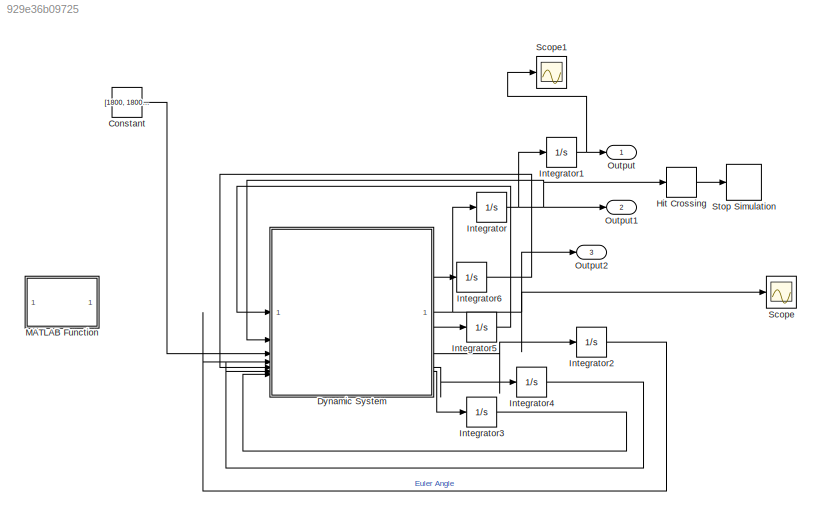
MODEL slx_929e36b09725
KIND model
CONFIG AbsTol = auto
CONFIG EnableMultiTasking = off
CONFIG FixedStep = auto
CONFIG MaxStep = auto
CONFIG MinStep = auto
CONFIG RelTol = 1e-3
CONFIG SampleTimeConstraint = Unconstrained
CONFIG SolverName = VariableStepAuto
CONFIG StartTime = 0.0
CONFIG StopTime = 10.0
BLOCK [Constant] Constant
  Value = [1800, 1800, 1800]
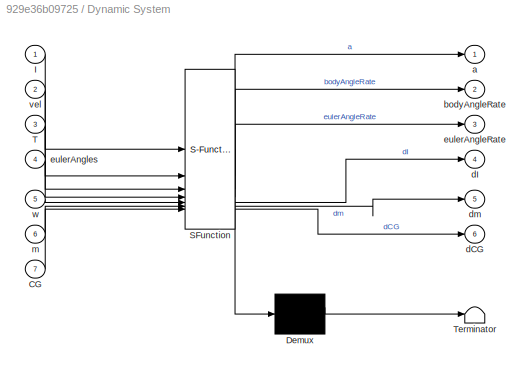
BLOCK [SubSystem] Dynamic System
  ErrorFcn = Stateflow.Translate.translate
  PermitHierarchicalResolution = ExplicitOnly
  SFBlockType = MATLAB Function
  TreatAsAtomicUnit = on
BLOCK [Demux] Dynamic System/ Demux 
  Outputs = 1
BLOCK [S-Function] Dynamic System/ SFunction 
  EnableBusSupport = on
  FunctionName = sf_sfun
  PortCounts = [7 7]
  SFcnIsStateOwnerBlock = off
  SFunctionDeploymentMode = off
  Tag = Stateflow S-Function 2
BLOCK [Terminator] Dynamic System/ Terminator 
BLOCK [Inport] Dynamic System/CG
  Port = 7
BLOCK [Inport] Dynamic System/I
BLOCK [Inport] Dynamic System/T
  Port = 3
BLOCK [Outport] Dynamic System/a
BLOCK [Outport] Dynamic System/bodyAngleRate
  Port = 2
BLOCK [Outport] Dynamic System/dCG
  Port = 6
BLOCK [Outport] Dynamic System/dI
  Port = 4
BLOCK [Outport] Dynamic System/dm
  Port = 5
BLOCK [Outport] Dynamic System/eulerAngleRate
  Port = 3
BLOCK [Inport] Dynamic System/eulerAngles
  Port = 4
BLOCK [Inport] Dynamic System/m
  Port = 6
BLOCK [Inport] Dynamic System/vel
  Port = 2
BLOCK [Inport] Dynamic System/w
  Port = 5
BLOCK [HitCross] Hit Crossing
  HitCrossingDirection = falling
BLOCK [Integrator] Integrator
  InitialCondition = [0,0,0]
BLOCK [Integrator] Integrator1
  InitialCondition = [0,0,0]
BLOCK [Integrator] Integrator2
  InitialCondition = [0;0;0]
BLOCK [Integrator] Integrator3
  InitialCondition = [5, 0, 0]
BLOCK [Integrator] Integrator4
  InitialCondition = 190
BLOCK [Integrator] Integrator5
  InitialCondition = [27.920, 0, 0; 0, 27.960, 0; 0, 0, 7.87870]
BLOCK [Integrator] Integrator6
  InitialCondition = [0,0,0]
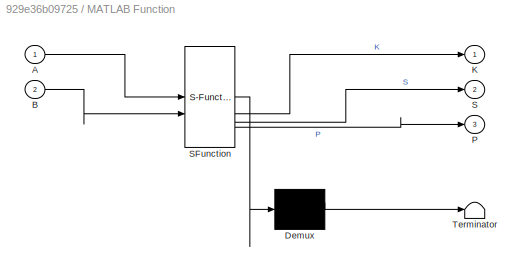
BLOCK [SubSystem] MATLAB Function
  Commented = on
  ErrorFcn = Stateflow.Translate.translate
  PermitHierarchicalResolution = ExplicitOnly
  SFBlockType = MATLAB Function
  TreatAsAtomicUnit = on
BLOCK [Demux] MATLAB Function/ Demux 
  Outputs = 1
BLOCK [S-Function] MATLAB Function/ SFunction 
  EnableBusSupport = on
  FunctionName = sf_sfun
  PortCounts = [2 4]
  SFcnIsStateOwnerBlock = off
  SFunctionDeploymentMode = off
  Tag = Stateflow S-Function 1
BLOCK [Terminator] MATLAB Function/ Terminator 
BLOCK [Inport] MATLAB Function/A
BLOCK [Inport] MATLAB Function/B
  Port = 2
BLOCK [Outport] MATLAB Function/K
BLOCK [Outport] MATLAB Function/P
  Port = 3
BLOCK [Outport] MATLAB Function/S
  Port = 2
BLOCK [Outport] Output
  SignalName = Displacement
BLOCK [Outport] Output1
  Port = 2
  SignalName = Velocity
BLOCK [Outport] Output2
  Port = 3
  SignalName = Acceleration
BLOCK [Scope] Scope
  Floating = off
  NumInputPorts = 1
  ScopeSpecificationString = Simulink.scopes.TimeScopeBlockCfg('CurrentConfiguration', extmgr.ConfigurationSet(extmgr.Configuration('Core','General UI',true),extmgr.Configuration('Core','Source UI',true),extmgr.Configuration('Sources','WiredSimulink',true),extmgr.Configuration('Visuals','Time Domain',true,'SerializedDisplays',{struct('MinYLimReal','-1.56257','MaxYLimReal','10.69993','YLabelReal','','MinYLimMag','0.00000','Max...<+1439ch>
BLOCK [Scope] Scope1
  Floating = off
  NumInputPorts = 1
  ScopeSpecificationString = Simulink.scopes.TimeScopeBlockCfg('CurrentConfiguration', extmgr.ConfigurationSet(extmgr.Configuration('Core','General UI',true),extmgr.Configuration('Core','Source UI',true),extmgr.Configuration('Sources','WiredSimulink',true,'DataLoggingVariableName','ScopeData1'),extmgr.Configuration('Visuals','Time Domain',true,'SerializedDisplays',{struct('MinYLimReal','-1.00000','MaxYLimReal','1.00000','YLab...<+1459ch>
BLOCK [Stop] Stop Simulation
LINE Constant:1 -> Dynamic System:3
NET Dynamic System:1 -> Integrator:1, Output2:1, Scope:1
LINE Dynamic System:2 -> Integrator6:1
LINE Dynamic System:3 -> Integrator2:1
LINE Dynamic System:4 -> Integrator5:1
LINE Dynamic System:5 -> Integrator4:1
LINE Dynamic System:6 -> Integrator3:1
LINE Hit Crossing:1 -> Stop Simulation:1
NET Integrator1:1 -> Output:1, Scope1:1
LINE Integrator2:1 -> Dynamic System:4
LINE Integrator3:1 -> Dynamic System:7
LINE Integrator4:1 -> Dynamic System:6
LINE Integrator5:1 -> Dynamic System:1
LINE Integrator6:1 -> Dynamic System:5
NET Integrator:1 -> Dynamic System:2, Hit Crossing:1, Integrator1:1, Output1:1
note: NET lines group one-source signal fan-out (src -> all destinations, sorted); 1:1 wires keep LINE
CHART MATLAB Function states=1 transitions=1
  STATE_LABEL 'eML_blk_kernel()'
  STATE_LABEL 'SCRIPT:\nfunction [K, S, P] = controls(A, B)\n    \n    qx = 0;\n    qy = 0;\n    qz = 0;\n    qd = 0;\n    qe = 0;\n    qf = 0;\n    \n    rtx = 0;\n    rty = 0;\n    rtz = 0;\n\n    Q = diag([qx, qy, qz, qd, qe, qf]);\n    R = diag([rtx, rty, rtz]);\n    [K, S, P] = lqr(A, B, Q, R);\n    \nend\n'
CHART Dynamic System states=1 transitions=1
  STATE_LABEL 'eML_blk_kernel()'
  STATE_LABEL 'SCRIPT:\nfunction [a, bodyAngleRate, eulerAngleRate, dI, dm, dCG]  = dynamics(I, vel, T, eulerAngles, w, m, CG)\n    %\n    % Inputs: param - Rocket parameters (Dry mass, moment of inertiam cg)\n    %         T - Thrust Vector \n    %         w - angular velocity vector\n    % Outputs: a - acceleration vector\n    %          wd - angular acceleration vector\n\n    Isp = 190;\n\n    engineCG = [10, 0, 0]; % L...<+2137ch>'
CHART  states=0 transitions=0
CHART  states=0 transitions=0
